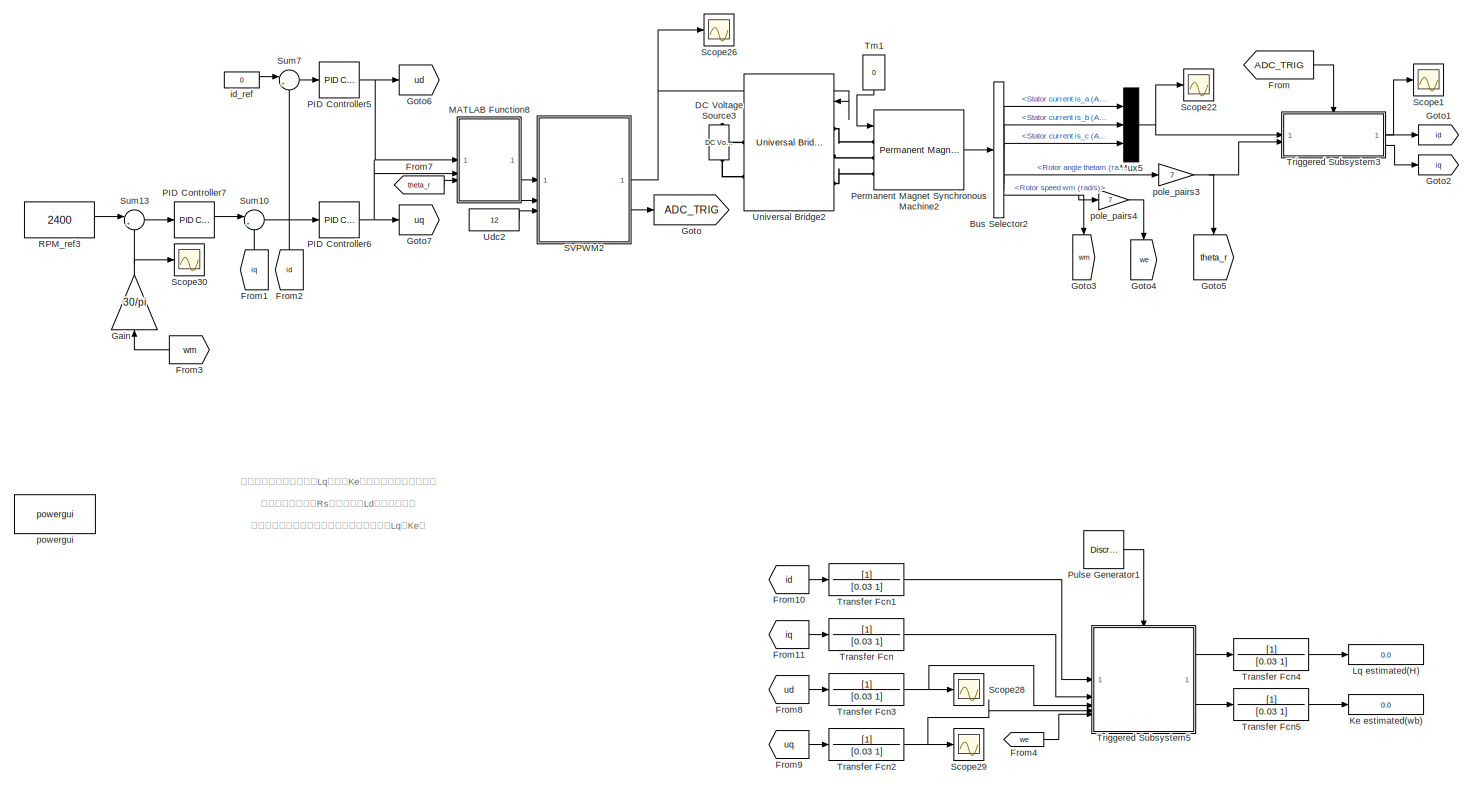
[diagram: root canvas - part 1/1, most of the canvas]
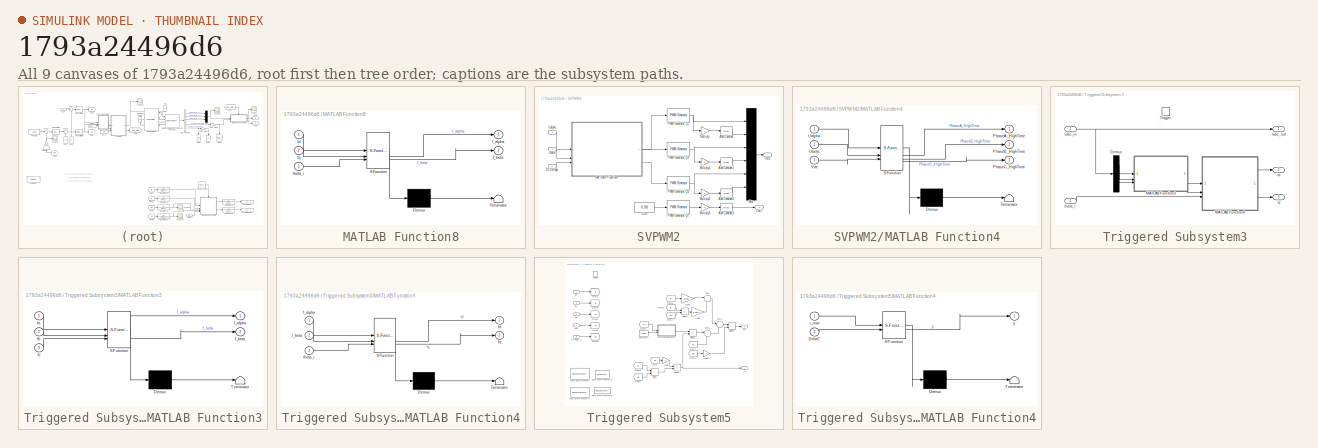
[diagram: thumbnail index - all 9 canvases of the model, root first then tree order]
MODEL slx_1793a24496d6
KIND model
CONFIG AbsTol = auto
CONFIG EnableMultiTasking = off
CONFIG FixedStep = 1E-6
CONFIG MaxStep = auto
CONFIG MinStep = auto
CONFIG RelTol = 1e-3
CONFIG SampleTimeConstraint = Unconstrained
CONFIG SolverName = FixedStepAuto
CONFIG StartTime = 0.0
CONFIG StopTime = 0.5
WORKSPACE source: mxarray member
WORKSPACE PWM_Frequency: Simulink.Parameter (value not decoded)
WORKSPACE TimerPeriod = 0.1
BLOCK [BusSelector] Bus Selector2
  OutputSignals = Stator current is_a (A),Stator current is_b (A),Stator current is_c (A),Rotor angle thetam (rad),Rotor speed wm (rad/s)
BLOCK [Reference] DC Voltage Source3  REF=spsDCVoltageSourceLib/DC Voltage Source
  LibrarySourceBlock = sps_lib/Sources/DC Voltage Source
  SourceBlock = spsDCVoltageSourceLib/DC Voltage Source
  SourceType = DC Voltage Source
BLOCK [From] From
  GotoTag = ADC_TRIG
BLOCK [From] From1
  GotoTag = iq
  NameLocation = right
BLOCK [From] From10
  GotoTag = id
BLOCK [From] From11
  GotoTag = iq
BLOCK [From] From2
  GotoTag = id
  NameLocation = right
BLOCK [From] From3
  GotoTag = wm
  NameLocation = top
BLOCK [From] From4
  GotoTag = we
BLOCK [From] From7
  GotoTag = theta_r
BLOCK [From] From8
  GotoTag = ud
BLOCK [From] From9
  GotoTag = uq
BLOCK [Gain] Gain
  Gain = 30/pi
  NameLocation = right
BLOCK [Goto] Goto
  GotoTag = ADC_TRIG
BLOCK [Goto] Goto1
  GotoTag = id
BLOCK [Goto] Goto2
  GotoTag = iq
BLOCK [Goto] Goto3
  GotoTag = wm
  NameLocation = left
BLOCK [Goto] Goto4
  GotoTag = we
  NameLocation = left
BLOCK [Goto] Goto5
  GotoTag = theta_r
  NameLocation = left
BLOCK [Goto] Goto6
  GotoTag = ud
BLOCK [Goto] Goto7
  GotoTag = uq
BLOCK [Display] Ke estimated(wb)
  Decimation = 1
BLOCK [Display] Lq estimated(H)
  Decimation = 1
BLOCK [SubSystem] MATLAB Function8
  ErrorFcn = Stateflow.Translate.translate
  PermitHierarchicalResolution = ExplicitOnly
  SFBlockType = MATLAB Function
  TreatAsAtomicUnit = on
BLOCK [Demux] MATLAB Function8/ Demux 
  Outputs = 1
BLOCK [S-Function] MATLAB Function8/ SFunction 
  EnableBusSupport = on
  FunctionName = sf_sfun
  PortCounts = [3 3]
  SFcnIsStateOwnerBlock = off
  SFunctionDeploymentMode = off
  Tag = Stateflow S-Function 16
BLOCK [Terminator] MATLAB Function8/ Terminator 
BLOCK [Outport] MATLAB Function8/f_alpha
BLOCK [Outport] MATLAB Function8/f_beta
  Port = 2
BLOCK [Inport] MATLAB Function8/fd
BLOCK [Inport] MATLAB Function8/fq
  Port = 2
BLOCK [Inport] MATLAB Function8/theta_r
  Port = 3
BLOCK [Mux] Mux5
  DisplayOption = bar
  Inputs = 3
BLOCK [Reference] PID Controller5  REF=slpidlib/PID Controller
  LibrarySourceBlock = simulink/Continuous/PID Controller
  SourceBlock = slpidlib/PID Controller
  SourceType = PID 1dof
BLOCK [Reference] PID Controller6  REF=slpidlib/PID Controller
  LibrarySourceBlock = simulink/Continuous/PID Controller
  SourceBlock = slpidlib/PID Controller
  SourceType = PID 1dof
BLOCK [Reference] PID Controller7  REF=slpidlib/PID Controller
  LibrarySourceBlock = simulink/Continuous/PID Controller
  SourceBlock = slpidlib/PID Controller
  SourceType = PID 1dof
BLOCK [Reference] Permanent Magnet Synchronous Machine2  REF=spsPermanentMagnetSynchronousMachineLib/Permanent Magnet
Synchronous Machine
  LibrarySourceBlock = sps_lib/Electrical Machines/Permanent Magnet\nSynchronous Machine
  SourceBlock = spsPermanentMagnetSynchronousMachineLib/Permanent Magnet\nSynchronous Machine
  SourceType = Permanent Magnet Synchronous Machine
BLOCK [DiscretePulseGenerator] Pulse Generator1
  Period = 0.005
  PulseType = Time based
  PulseWidth = 30
BLOCK [Constant] RPM_ref3
  Value = 2400
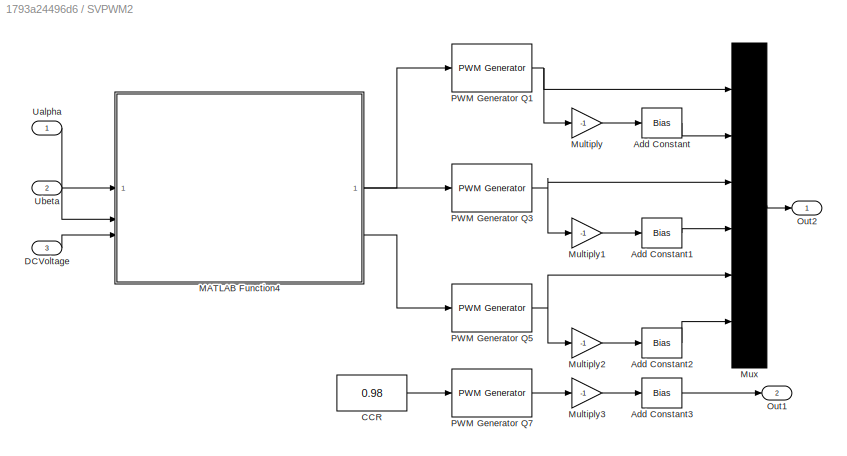
BLOCK [SubSystem] SVPWM2
BLOCK [Bias] SVPWM2/Add Constant
  Bias = 1
  SaturateOnIntegerOverflow = off
BLOCK [Bias] SVPWM2/Add Constant1
  Bias = 1
  SaturateOnIntegerOverflow = off
BLOCK [Bias] SVPWM2/Add Constant2
  Bias = 1
  SaturateOnIntegerOverflow = off
BLOCK [Bias] SVPWM2/Add Constant3
  Bias = 1
  SaturateOnIntegerOverflow = off
BLOCK [Constant] SVPWM2/CCR
  Value = 0.98
BLOCK [Inport] SVPWM2/DCVoltage
  IconDisplay = Signal name
  Port = 3
BLOCK [SubSystem] SVPWM2/MATLAB Function4
  ErrorFcn = Stateflow.Translate.translate
  PermitHierarchicalResolution = ExplicitOnly
  SFBlockType = MATLAB Function
  TreatAsAtomicUnit = on
BLOCK [Demux] SVPWM2/MATLAB Function4/ Demux 
  Outputs = 1
BLOCK [S-Function] SVPWM2/MATLAB Function4/ SFunction 
  EnableBusSupport = on
  FunctionName = sf_sfun
  PortCounts = [3 4]
  SFcnIsStateOwnerBlock = off
  SFunctionDeploymentMode = off
  Tag = Stateflow S-Function 17
BLOCK [Terminator] SVPWM2/MATLAB Function4/ Terminator 
BLOCK [Outport] SVPWM2/MATLAB Function4/PhaseA_HighTime
BLOCK [Outport] SVPWM2/MATLAB Function4/PhaseB_HighTime
  Port = 2
BLOCK [Outport] SVPWM2/MATLAB Function4/PhaseC_HighTime
  Port = 3
BLOCK [Inport] SVPWM2/MATLAB Function4/Ualpha
BLOCK [Inport] SVPWM2/MATLAB Function4/Ubeta
  Port = 2
BLOCK [Inport] SVPWM2/MATLAB Function4/Vdc
  Port = 3
BLOCK [Gain] SVPWM2/Multiply
  Gain = -1
BLOCK [Gain] SVPWM2/Multiply1
  Gain = -1
BLOCK [Gain] SVPWM2/Multiply2
  Gain = -1
BLOCK [Gain] SVPWM2/Multiply3
  Gain = -1
BLOCK [Mux] SVPWM2/Mux
  DisplayOption = bar
  Inputs = 6
BLOCK [Outport] SVPWM2/Out1
  Port = 2
BLOCK [Outport] SVPWM2/Out2
BLOCK [Reference] SVPWM2/PWM Generator Q1  REF=eePwmGenerator/PWM Generator
  LibrarySourceBlock = ee_sl_lib/Pulse Width\nModulation/PWM Generator
  SourceBlock = eePwmGenerator/PWM Generator
  SourceType = PWM Generator
BLOCK [Reference] SVPWM2/PWM Generator Q3  REF=eePwmGenerator/PWM Generator
  LibrarySourceBlock = ee_sl_lib/Pulse Width\nModulation/PWM Generator
  SourceBlock = eePwmGenerator/PWM Generator
  SourceType = PWM Generator
BLOCK [Reference] SVPWM2/PWM Generator Q5  REF=eePwmGenerator/PWM Generator
  LibrarySourceBlock = ee_sl_lib/Pulse Width\nModulation/PWM Generator
  SourceBlock = eePwmGenerator/PWM Generator
  SourceType = PWM Generator
BLOCK [Reference] SVPWM2/PWM Generator Q7  REF=eePwmGenerator/PWM Generator
  LibrarySourceBlock = ee_sl_lib/Pulse Width\nModulation/PWM Generator
  SourceBlock = eePwmGenerator/PWM Generator
  SourceType = PWM Generator
BLOCK [Inport] SVPWM2/Ualpha
BLOCK [Inport] SVPWM2/Ubeta
  Port = 2
BLOCK [Scope] Scope1
  Floating = off
  NumInputPorts = 1
  ScopeSpecificationString = Simulink.scopes.TimeScopeBlockCfg('CurrentConfiguration', extmgr.ConfigurationSet(extmgr.Configuration('Core','General UI',true),extmgr.Configuration('Core','Source UI',true),extmgr.Configuration('Sources','WiredSimulink',true,'DataLoggingVariableName','ScopeData1'),extmgr.Configuration('Visuals','Time Domain',true,'SerializedDisplays',{struct('MinYLimReal','-1.52471','MaxYLimReal','2.45871','YLab...<+1678ch>
BLOCK [Scope] Scope22
  Floating = off
  NumInputPorts = 1
  ScopeSpecificationString = Simulink.scopes.TimeScopeBlockCfg('CurrentConfiguration', extmgr.ConfigurationSet(extmgr.Configuration('Core','General UI',true),extmgr.Configuration('Core','Source UI',true),extmgr.Configuration('Sources','WiredSimulink',true,'DataLoggingVariableName','ScopeData9'),extmgr.Configuration('Visuals','Time Domain',true,'SerializedDisplays',{struct('MinYLimReal','-1.52471','MaxYLimReal','2.45871','YLab...<+1678ch>
BLOCK [Scope] Scope26
  Floating = off
  NumInputPorts = 1
  ScopeSpecificationString = Simulink.scopes.TimeScopeBlockCfg('CurrentConfiguration', extmgr.ConfigurationSet(extmgr.Configuration('Core','General UI',true),extmgr.Configuration('Core','Source UI',true),extmgr.Configuration('Sources','WiredSimulink',true,'DataLoggingVariableName','ScopeData13'),extmgr.Configuration('Visuals','Time Domain',true,'SerializedDisplays',{struct('MinYLimReal','-0.04051','MaxYLimReal','1.02465','YLa...<+1891ch>
BLOCK [Scope] Scope28
  Floating = off
  NumInputPorts = 1
  ScopeSpecificationString = Simulink.scopes.TimeScopeBlockCfg('CurrentConfiguration', extmgr.ConfigurationSet(extmgr.Configuration('Core','General UI',true),extmgr.Configuration('Core','Source UI',true),extmgr.Configuration('Sources','WiredSimulink',true,'DataLoggingVariableName','ScopeData15'),extmgr.Configuration('Visuals','Time Domain',true,'SerializedDisplays',{struct('MinYLimReal','-46.76716','MaxYLimReal','5.20219','YL...<+1549ch>
BLOCK [Scope] Scope29
  Floating = off
  NumInputPorts = 1
  ScopeSpecificationString = Simulink.scopes.TimeScopeBlockCfg('CurrentConfiguration', extmgr.ConfigurationSet(extmgr.Configuration('Core','General UI',true),extmgr.Configuration('Core','Source UI',true),extmgr.Configuration('Sources','WiredSimulink',true,'DataLoggingVariableName','ScopeData16'),extmgr.Configuration('Visuals','Time Domain',true,'SerializedDisplays',{struct('MinYLimReal','-2.75072','MaxYLimReal','24.75651','YL...<+1549ch>
BLOCK [Scope] Scope30
  Floating = off
  NumInputPorts = 1
  ScopeSpecificationString = Simulink.scopes.TimeScopeBlockCfg('CurrentConfiguration', extmgr.ConfigurationSet(extmgr.Configuration('Core','General UI',true),extmgr.Configuration('Core','Source UI',true),extmgr.Configuration('Sources','WiredSimulink',true,'DataLoggingVariableName','ScopeData17'),extmgr.Configuration('Visuals','Time Domain',true,'SerializedDisplays',{struct('MinYLimReal','-302.61046','MaxYLimReal','2723.49415'...<+1583ch>
BLOCK [Sum] Sum10
  Inputs = |+-
BLOCK [Sum] Sum13
  Inputs = |+-
BLOCK [Sum] Sum7
  Inputs = |+-
BLOCK [Constant] Tm1
  NameLocation = top
  Value = 0
BLOCK [TransferFcn] Transfer Fcn
  Denominator = [0.03 1]
BLOCK [TransferFcn] Transfer Fcn1
  Denominator = [0.03 1]
BLOCK [TransferFcn] Transfer Fcn2
  Denominator = [0.03 1]
BLOCK [TransferFcn] Transfer Fcn3
  Denominator = [0.03 1]
BLOCK [TransferFcn] Transfer Fcn4
  Denominator = [0.03 1]
BLOCK [TransferFcn] Transfer Fcn5
  Denominator = [0.03 1]
BLOCK [SubSystem] Triggered Subsystem3
  TreatAsAtomicUnit = on
BLOCK [Demux] Triggered Subsystem3/Demux
  Outputs = 3
BLOCK [SubSystem] Triggered Subsystem3/MATLAB Function3
  ErrorFcn = Stateflow.Translate.translate
  PermitHierarchicalResolution = ExplicitOnly
  SFBlockType = MATLAB Function
  TreatAsAtomicUnit = on
BLOCK [Demux] Triggered Subsystem3/MATLAB Function3/ Demux 
  Outputs = 1
BLOCK [S-Function] Triggered Subsystem3/MATLAB Function3/ SFunction 
  EnableBusSupport = on
  FunctionName = sf_sfun
  PortCounts = [3 3]
  SFcnIsStateOwnerBlock = off
  SFunctionDeploymentMode = off
  Tag = Stateflow S-Function 20
BLOCK [Terminator] Triggered Subsystem3/MATLAB Function3/ Terminator 
BLOCK [Outport] Triggered Subsystem3/MATLAB Function3/f_alpha
BLOCK [Outport] Triggered Subsystem3/MATLAB Function3/f_beta
  Port = 2
BLOCK [Inport] Triggered Subsystem3/MATLAB Function3/fa
BLOCK [Inport] Triggered Subsystem3/MATLAB Function3/fb
  Port = 2
BLOCK [Inport] Triggered Subsystem3/MATLAB Function3/fc
  Port = 3
BLOCK [SubSystem] Triggered Subsystem3/MATLAB Function4
  ErrorFcn = Stateflow.Translate.translate
  PermitHierarchicalResolution = ExplicitOnly
  SFBlockType = MATLAB Function
  TreatAsAtomicUnit = on
BLOCK [Demux] Triggered Subsystem3/MATLAB Function4/ Demux 
  Outputs = 1
BLOCK [S-Function] Triggered Subsystem3/MATLAB Function4/ SFunction 
  EnableBusSupport = on
  FunctionName = sf_sfun
  PortCounts = [3 3]
  SFcnIsStateOwnerBlock = off
  SFunctionDeploymentMode = off
  Tag = Stateflow S-Function 21
BLOCK [Terminator] Triggered Subsystem3/MATLAB Function4/ Terminator 
BLOCK [Inport] Triggered Subsystem3/MATLAB Function4/f_alpha
BLOCK [Inport] Triggered Subsystem3/MATLAB Function4/f_beta
  Port = 2
BLOCK [Outport] Triggered Subsystem3/MATLAB Function4/fd
BLOCK [Outport] Triggered Subsystem3/MATLAB Function4/fq
  Port = 2
BLOCK [Inport] Triggered Subsystem3/MATLAB Function4/theta_r
  Port = 3
BLOCK [TriggerPort] Triggered Subsystem3/Trigger
  StatesWhenEnabling = held
  VariantControl = (inherit)
BLOCK [Inport] Triggered Subsystem3/iabc_in
BLOCK [Outport] Triggered Subsystem3/iabc_out
BLOCK [Outport] Triggered Subsystem3/id
  Port = 2
BLOCK [Outport] Triggered Subsystem3/iq
  Port = 3
BLOCK [Inport] Triggered Subsystem3/theta_r
  Port = 2
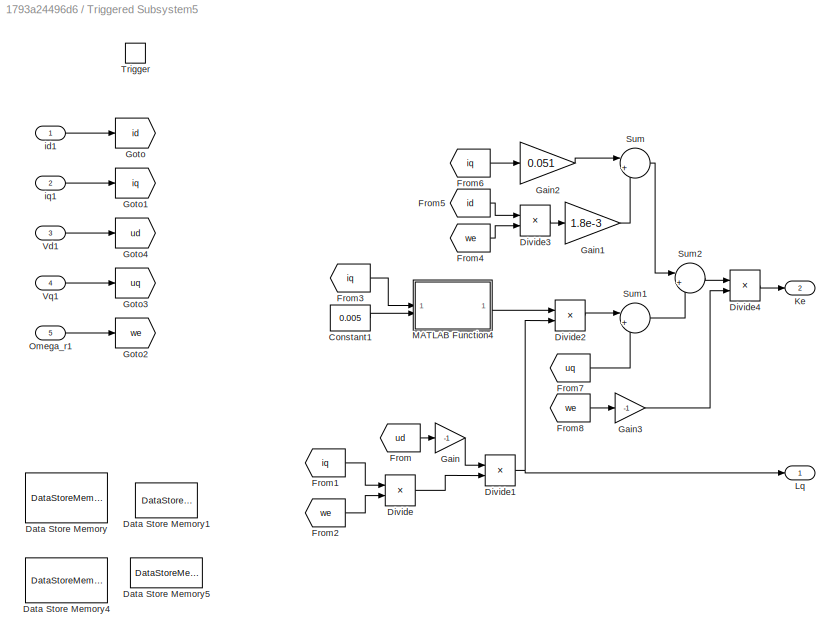
BLOCK [SubSystem] Triggered Subsystem5
  TreatAsAtomicUnit = on
BLOCK [Constant] Triggered Subsystem5/Constant1
  Value = 0.005
BLOCK [DataStoreMemory] Triggered Subsystem5/Data Store Memory
  DataStoreName = iq_e
  OutDataTypeStr = double
  ShowAdditionalParam = off
  SignalType = real
  WriteAfterWriteMsg = warning
BLOCK [DataStoreMemory] Triggered Subsystem5/Data Store Memory1
  DataStoreName = diq_e
  OutDataTypeStr = double
  ShowAdditionalParam = off
  SignalType = real
  WriteAfterWriteMsg = warning
BLOCK [DataStoreMemory] Triggered Subsystem5/Data Store Memory4
  DataStoreName = id_e
  OutDataTypeStr = double
  ShowAdditionalParam = off
  SignalType = real
  WriteAfterWriteMsg = warning
BLOCK [DataStoreMemory] Triggered Subsystem5/Data Store Memory5
  DataStoreName = did_e
  OutDataTypeStr = double
  ShowAdditionalParam = off
  SignalType = real
  WriteAfterWriteMsg = warning
BLOCK [Product] Triggered Subsystem5/Divide
  Inputs = **
BLOCK [Product] Triggered Subsystem5/Divide1
  Inputs = */
BLOCK [Product] Triggered Subsystem5/Divide2
  Inputs = **
BLOCK [Product] Triggered Subsystem5/Divide3
  Inputs = **
BLOCK [Product] Triggered Subsystem5/Divide4
  Inputs = */
BLOCK [From] Triggered Subsystem5/From
  GotoTag = ud
BLOCK [From] Triggered Subsystem5/From1
  GotoTag = iq
BLOCK [From] Triggered Subsystem5/From2
  GotoTag = we
BLOCK [From] Triggered Subsystem5/From3
  GotoTag = iq
BLOCK [From] Triggered Subsystem5/From4
  GotoTag = we
BLOCK [From] Triggered Subsystem5/From5
  GotoTag = id
BLOCK [From] Triggered Subsystem5/From6
  GotoTag = iq
BLOCK [From] Triggered Subsystem5/From7
  GotoTag = uq
BLOCK [From] Triggered Subsystem5/From8
  GotoTag = we
BLOCK [Gain] Triggered Subsystem5/Gain
  Gain = -1
BLOCK [Gain] Triggered Subsystem5/Gain1
  Gain = 1.8e-3
BLOCK [Gain] Triggered Subsystem5/Gain2
  Gain = 0.051
BLOCK [Gain] Triggered Subsystem5/Gain3
  Gain = -1
BLOCK [Goto] Triggered Subsystem5/Goto
  GotoTag = id
BLOCK [Goto] Triggered Subsystem5/Goto1
  GotoTag = iq
BLOCK [Goto] Triggered Subsystem5/Goto2
  GotoTag = we
BLOCK [Goto] Triggered Subsystem5/Goto3
  GotoTag = uq
BLOCK [Goto] Triggered Subsystem5/Goto4
  GotoTag = ud
BLOCK [Outport] Triggered Subsystem5/Ke
  Port = 2
BLOCK [Outport] Triggered Subsystem5/Lq
BLOCK [SubSystem] Triggered Subsystem5/MATLAB Function4
  ErrorFcn = Stateflow.Translate.translate
  PermitHierarchicalResolution = ExplicitOnly
  SFBlockType = MATLAB Function
  TreatAsAtomicUnit = on
BLOCK [Demux] Triggered Subsystem5/MATLAB Function4/ Demux 
  Outputs = 1
BLOCK [S-Function] Triggered Subsystem5/MATLAB Function4/ SFunction 
  EnableBusSupport = on
  FunctionName = sf_sfun
  PortCounts = [2 2]
  SFcnIsStateOwnerBlock = off
  SFunctionDeploymentMode = off
  Tag = Stateflow S-Function 1
BLOCK [Terminator] Triggered Subsystem5/MATLAB Function4/ Terminator 
BLOCK [Inport] Triggered Subsystem5/MATLAB Function4/DeltaT
  Port = 2
BLOCK [Inport] Triggered Subsystem5/MATLAB Function4/i_now
BLOCK [Outport] Triggered Subsystem5/MATLAB Function4/y
BLOCK [Inport] Triggered Subsystem5/Omega_r1
  Port = 5
BLOCK [Sum] Triggered Subsystem5/Sum
  Inputs = |++
BLOCK [Sum] Triggered Subsystem5/Sum1
  Inputs = |+-
BLOCK [Sum] Triggered Subsystem5/Sum2
  Inputs = |++
BLOCK [TriggerPort] Triggered Subsystem5/Trigger
  StatesWhenEnabling = held
  VariantControl = (inherit)
BLOCK [Inport] Triggered Subsystem5/Vd1
  Port = 3
BLOCK [Inport] Triggered Subsystem5/Vq1
  Port = 4
BLOCK [Inport] Triggered Subsystem5/id1
BLOCK [Inport] Triggered Subsystem5/iq1
  Port = 2
BLOCK [Constant] Udc2
  Value = 12
BLOCK [Reference] Universal Bridge2  REF=spsUniversalBridgeLib/Universal Bridge
  LibrarySourceBlock = sps_lib/Power Electronics/Universal Bridge
  SourceBlock = spsUniversalBridgeLib/Universal Bridge
  SourceType = Universal Bridge
BLOCK [Constant] id_ref
  Value = 0
BLOCK [Gain] pole_pairs3
  Gain = 7
BLOCK [Gain] pole_pairs4
  Gain = 7
BLOCK [Reference] powergui  REF=sps_lib/powergui
  LibrarySourceBlock = sps_lib/powergui
  Priority = 1
  SourceBlock = sps_lib/powergui
  SourceType = PSB option menu block
ANNOTATION (root): 本方案离线测量交轴电感Lq和磁链Ke（又叫反电动势常数）。 要求已获得相电阻Rs和直轴电感Ld的准确数值。 要求电机以恒定转速旋转，我们在稳态时计算Lq与Ke。 通过转速环+电流环实现闭环控制，且保持id=0，这样直轴等效电路方程 Ud = Rs*id + Ld*did/dt - Lq*iq*we 可化简为： Ud = - Lq*iq*we 于是Lq = - Ud/(iq*we)。接下来计算Ke： Uq = Rs*iq + Lq*diq/dt + (Ld*id+Ke)*we Ke = (Lq*diq/dt + Rs*iq - Uq + Ld*id*we)/(-we) 同样的，在稳态时，可简化为： Ke = ( Rs*iq - Uq + Ld*id*we)/(-we) 数值实验表明，扔掉Lq*diq/dt影响不大。
LINE Bus Selector2:1 -> Mux5:1
LINE Bus Selector2:2 -> Mux5:2
LINE Bus Selector2:3 -> Mux5:3
LINE Bus Selector2:4 -> pole_pairs3:1
NET Bus Selector2:5 -> Goto3:1, pole_pairs4:1
LINE From10:1 -> Transfer Fcn1:1
LINE From11:1 -> Transfer Fcn:1
LINE From1:1 -> Sum10:2
LINE From2:1 -> Sum7:2
LINE From3:1 -> Gain:1
LINE From4:1 -> Triggered Subsystem5:5
LINE From7:1 -> MATLAB Function8:3
LINE From8:1 -> Transfer Fcn3:1
LINE From9:1 -> Transfer Fcn2:1
LINE From:1 -> Triggered Subsystem3:trigger
NET Gain:1 -> Scope30:1, Sum13:2
LINE MATLAB Function8:1 -> SVPWM2:1
LINE MATLAB Function8:2 -> SVPWM2:2
NET Mux5:1 -> Scope22:1, Triggered Subsystem3:1
NET PID Controller5:1 -> Goto6:1, MATLAB Function8:1
NET PID Controller6:1 -> Goto7:1, MATLAB Function8:2
LINE PID Controller7:1 -> Sum10:1
LINE Permanent Magnet Synchronous Machine2:1 -> Bus Selector2:1
LINE Pulse Generator1:1 -> Triggered Subsystem5:trigger
LINE RPM_ref3:1 -> Sum13:1
LINE SVPWM2/Add Constant1:1 -> SVPWM2/Mux:4
LINE SVPWM2/Add Constant2:1 -> SVPWM2/Mux:6
LINE SVPWM2/Add Constant3:1 -> SVPWM2/Out1:1
LINE SVPWM2/Add Constant:1 -> SVPWM2/Mux:2
LINE SVPWM2/CCR:1 -> SVPWM2/PWM Generator Q7:1
LINE SVPWM2/DCVoltage:1 -> SVPWM2/MATLAB Function4:3
LINE SVPWM2/MATLAB Function4:1 -> SVPWM2/PWM Generator Q1:1
LINE SVPWM2/MATLAB Function4:2 -> SVPWM2/PWM Generator Q3:1
LINE SVPWM2/MATLAB Function4:3 -> SVPWM2/PWM Generator Q5:1
LINE SVPWM2/Multiply1:1 -> SVPWM2/Add Constant1:1
LINE SVPWM2/Multiply2:1 -> SVPWM2/Add Constant2:1
LINE SVPWM2/Multiply3:1 -> SVPWM2/Add Constant3:1
LINE SVPWM2/Multiply:1 -> SVPWM2/Add Constant:1
LINE SVPWM2/Mux:1 -> SVPWM2/Out2:1
NET SVPWM2/PWM Generator Q1:1 -> SVPWM2/Multiply:1, SVPWM2/Mux:1
NET SVPWM2/PWM Generator Q3:1 -> SVPWM2/Multiply1:1, SVPWM2/Mux:3
NET SVPWM2/PWM Generator Q5:1 -> SVPWM2/Multiply2:1, SVPWM2/Mux:5
LINE SVPWM2/PWM Generator Q7:1 -> SVPWM2/Multiply3:1
LINE SVPWM2/Ualpha:1 -> SVPWM2/MATLAB Function4:1
LINE SVPWM2/Ubeta:1 -> SVPWM2/MATLAB Function4:2
NET SVPWM2:1 -> Scope26:1, Universal Bridge2:1
LINE SVPWM2:2 -> Goto:1
LINE Sum10:1 -> PID Controller6:1
LINE Sum13:1 -> PID Controller7:1
LINE Sum7:1 -> PID Controller5:1
LINE Tm1:1 -> Permanent Magnet Synchronous Machine2:1
LINE Transfer Fcn1:1 -> Triggered Subsystem5:1
NET Transfer Fcn2:1 -> Scope29:1, Triggered Subsystem5:4
NET Transfer Fcn3:1 -> Scope28:1, Triggered Subsystem5:3
LINE Transfer Fcn4:1 -> Lq estimated(H):1
LINE Transfer Fcn5:1 -> Ke estimated(wb):1
LINE Transfer Fcn:1 -> Triggered Subsystem5:2
LINE Triggered Subsystem3/Demux:1 -> Triggered Subsystem3/MATLAB Function3:1
LINE Triggered Subsystem3/Demux:2 -> Triggered Subsystem3/MATLAB Function3:2
LINE Triggered Subsystem3/Demux:3 -> Triggered Subsystem3/MATLAB Function3:3
LINE Triggered Subsystem3/MATLAB Function3:1 -> Triggered Subsystem3/MATLAB Function4:1
LINE Triggered Subsystem3/MATLAB Function3:2 -> Triggered Subsystem3/MATLAB Function4:2
LINE Triggered Subsystem3/MATLAB Function4:1 -> Triggered Subsystem3/id:1
LINE Triggered Subsystem3/MATLAB Function4:2 -> Triggered Subsystem3/iq:1
NET Triggered Subsystem3/iabc_in:1 -> Triggered Subsystem3/Demux:1, Triggered Subsystem3/iabc_out:1
LINE Triggered Subsystem3/theta_r:1 -> Triggered Subsystem3/MATLAB Function4:3
LINE Triggered Subsystem3:1 -> Scope1:1
LINE Triggered Subsystem3:2 -> Goto1:1
LINE Triggered Subsystem3:3 -> Goto2:1
LINE Triggered Subsystem5/Constant1:1 -> Triggered Subsystem5/MATLAB Function4:2
NET Triggered Subsystem5/Divide1:1 -> Triggered Subsystem5/Divide2:2, Triggered Subsystem5/Lq:1
LINE Triggered Subsystem5/Divide2:1 -> Triggered Subsystem5/Sum1:1
LINE Triggered Subsystem5/Divide3:1 -> Triggered Subsystem5/Gain1:1
LINE Triggered Subsystem5/Divide4:1 -> Triggered Subsystem5/Ke:1
LINE Triggered Subsystem5/Divide:1 -> Triggered Subsystem5/Divide1:2
LINE Triggered Subsystem5/From1:1 -> Triggered Subsystem5/Divide:1
LINE Triggered Subsystem5/From2:1 -> Triggered Subsystem5/Divide:2
LINE Triggered Subsystem5/From3:1 -> Triggered Subsystem5/MATLAB Function4:1
LINE Triggered Subsystem5/From4:1 -> Triggered Subsystem5/Divide3:2
LINE Triggered Subsystem5/From5:1 -> Triggered Subsystem5/Divide3:1
LINE Triggered Subsystem5/From6:1 -> Triggered Subsystem5/Gain2:1
LINE Triggered Subsystem5/From7:1 -> Triggered Subsystem5/Sum1:2
LINE Triggered Subsystem5/From8:1 -> Triggered Subsystem5/Gain3:1
LINE Triggered Subsystem5/From:1 -> Triggered Subsystem5/Gain:1
LINE Triggered Subsystem5/Gain1:1 -> Triggered Subsystem5/Sum:2
LINE Triggered Subsystem5/Gain2:1 -> Triggered Subsystem5/Sum:1
LINE Triggered Subsystem5/Gain3:1 -> Triggered Subsystem5/Divide4:2
LINE Triggered Subsystem5/Gain:1 -> Triggered Subsystem5/Divide1:1
LINE Triggered Subsystem5/MATLAB Function4:1 -> Triggered Subsystem5/Divide2:1
LINE Triggered Subsystem5/Omega_r1:1 -> Triggered Subsystem5/Goto2:1
LINE Triggered Subsystem5/Sum1:1 -> Triggered Subsystem5/Sum2:2
LINE Triggered Subsystem5/Sum2:1 -> Triggered Subsystem5/Divide4:1
LINE Triggered Subsystem5/Sum:1 -> Triggered Subsystem5/Sum2:1
LINE Triggered Subsystem5/Vd1:1 -> Triggered Subsystem5/Goto4:1
LINE Triggered Subsystem5/Vq1:1 -> Triggered Subsystem5/Goto3:1
LINE Triggered Subsystem5/id1:1 -> Triggered Subsystem5/Goto:1
LINE Triggered Subsystem5/iq1:1 -> Triggered Subsystem5/Goto1:1
LINE Triggered Subsystem5:1 -> Transfer Fcn4:1
LINE Triggered Subsystem5:2 -> Transfer Fcn5:1
LINE Udc2:1 -> SVPWM2:3
LINE id_ref:1 -> Sum7:1
NET pole_pairs3:1 -> Goto5:1, Triggered Subsystem3:2
LINE pole_pairs4:1 -> Goto4:1
PLINE DC Voltage Source3:LConn1 -- Universal Bridge2:RConn2
PLINE DC Voltage Source3:RConn1 -- Universal Bridge2:RConn1
PLINE Permanent Magnet Synchronous Machine2:LConn1 -- Universal Bridge2:LConn1
PLINE Permanent Magnet Synchronous Machine2:LConn2 -- Universal Bridge2:LConn2
PLINE Permanent Magnet Synchronous Machine2:LConn3 -- Universal Bridge2:LConn3
note: NET lines group one-source signal fan-out (src -> all destinations, sorted); 1:1 wires keep LINE
CHART Triggered
Subsystem5/MATLAB Function4 states=1 transitions=1
  STATE_LABEL 'eML_blk_kernel()'
  STATE_LABEL 'SCRIPT:\nfunction y = TD(i_now,DeltaT)\n\tglobal iq_e;\n    global diq_e;\n\tx1k = iq_e;\n\tx2k = diq_e;\n\n\tfactor = x2k*x2k/3000.0;\n    if factor < 1.0\n\t\tfactor = 1.0;\n    end\n    h = DeltaT;\n\th0 = 20*h;\n    r = 20/h;\n\tfh = fhan(x1k - i_now, x2k, r*factor, h0);\n\t\n\t\n\tx1k = x1k + h*x2k;\n\tx2k = x2k + h*fh;\n\n\tiq_e = x1k;\n\tdiq_e = x2k;\n\t\n\ty = x2k;\n\nend\n\nfunction y = fsg(x,d)\n y = (sign(x+d) - sign(x-d))/2.0;\ne...<+264ch>'
CHART MATLAB Function8 states=1 transitions=1
  STATE_LABEL 'eML_blk_kernel()'
  STATE_LABEL 'SCRIPT:\nfunction [f_alpha,f_beta]= fcn(fd,fq,theta_r)\nc = cos(theta_r);\ns = sin(theta_r);\nf_alpha =  c*fd - s*fq;\nf_beta =  s*fd + c*fq;\n'
CHART SVPWM2/MATLAB Function4 states=1 transitions=1
  STATE_LABEL 'eML_blk_kernel()'
  STATE_LABEL 'SCRIPT:\nfunction [PhaseA_HighTime,PhaseB_HighTime,PhaseC_HighTime] = SVPWM_calculate(Ualpha,Ubeta,Vdc)\n\n% unit:V %\n\n%step 1,which sector?%\nif Ualpha >= 0\n    %sector=1,2,5,6%\n    if Ubeta >= 0\n        %sector=1,2%\n        if Ubeta > sqrt(3)*Ualpha\n            sector=2;\n        else\n            sector=1;\n        end\n    else\n        %sector=5,6%\n        if -Ubeta > sqrt(3)*Ualpha\n            sector...<+1917ch>'
CHART Triggered
Subsystem3/MATLAB Function3 states=1 transitions=1
  STATE_LABEL 'eML_blk_kernel()'
  STATE_LABEL 'SCRIPT:\nfunction [f_alpha,f_beta]= ABC_to_AlphaBeta(fa,fb,fc)\nf_alpha = (2/3)*(fa-0.5*(fb+fc));\nf_beta = (2/3)*(0.5*sqrt(3)*(fb-fc));\n\n'
CHART Triggered
Subsystem3/MATLAB Function4 states=1 transitions=1
  STATE_LABEL 'eML_blk_kernel()'
  STATE_LABEL 'SCRIPT:\nfunction [fd,fq]= AlphaBeta_to_dq(f_alpha,f_beta,theta_r)\n\nc = cos(theta_r);\ns = sin(theta_r);\nfd =  c*f_alpha + s*f_beta;\nfq = -s*f_alpha + c*f_beta;\n\n'
CHART  states=0 transitions=0
CHART  states=0 transitions=0
CHART  states=0 transitions=0
CHART  states=0 transitions=0
CHART  states=0 transitions=0
